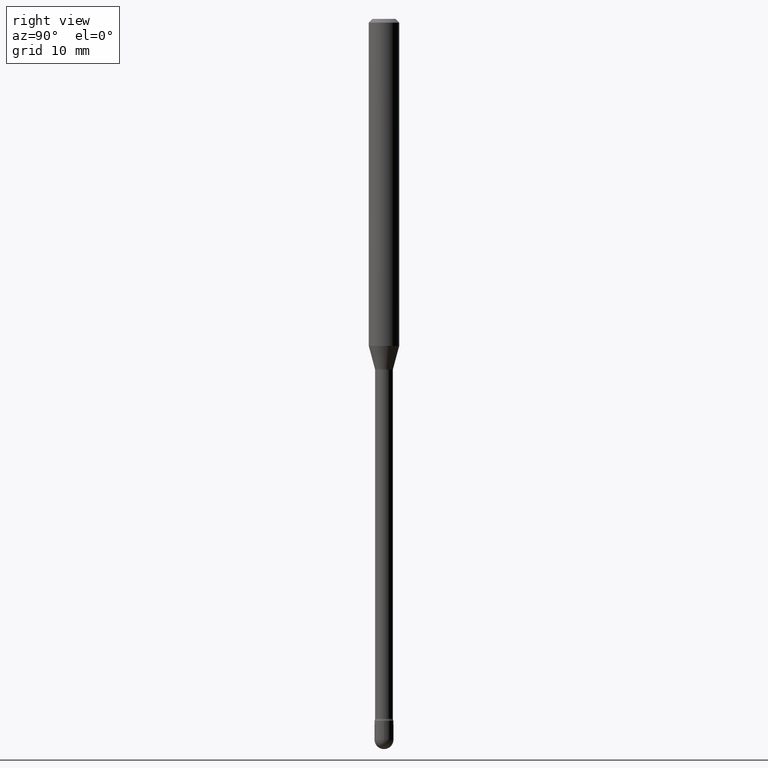
[diagram: clean part render]
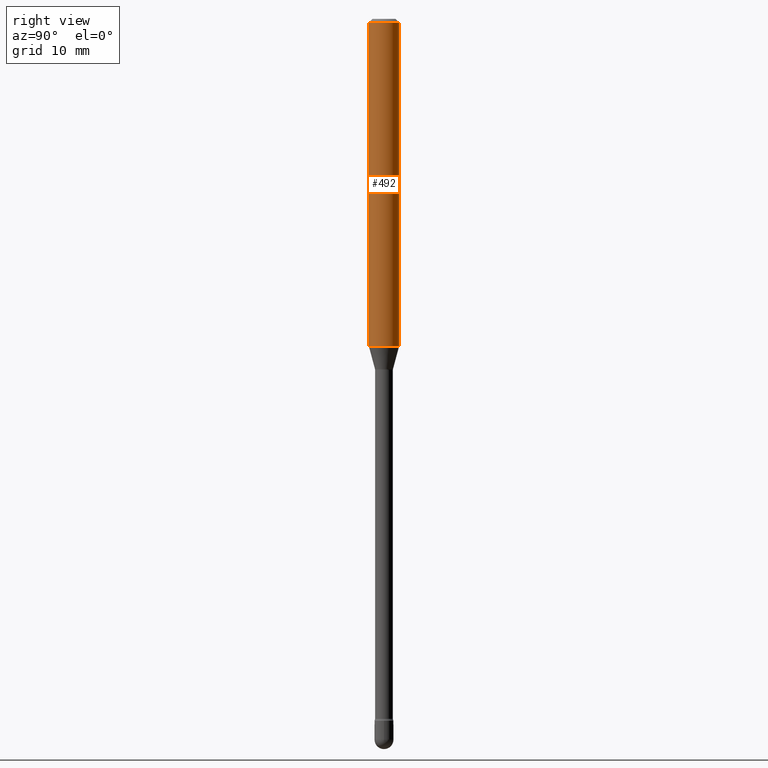
[diagram: same view with one face highlighted and labeled with its STEP entity id]
A machine part, right view. The second image highlights one B-rep face of the part: STEP entity #492.
In plain terms, the highlighted cylindrical surface (edge-blend (fillet) strip) has radius 1.5875 mm, axis along (-0, 0, 1).
Its self-contained STEP definition (entity closure, byte-faithful):
#8 = ORIENTED_EDGE ( 'NONE', *, *, #533, .T. ) ;
#11 = CIRCLE ( 'NONE', #65, 0.06250000000000000000 ) ;
#34 = DIRECTION ( 'NONE',  ( -6.982962677686265922E-15, -1.000000000000000000, 3.491441681932533187E-15 ) ) ;
#36 = AXIS2_PLACEMENT_3D ( 'NONE', #300, #125, #477 ) ;
#54 = VERTEX_POINT ( 'NONE', #378 ) ;
#65 = AXIS2_PLACEMENT_3D ( 'NONE', #525, #399, #445 ) ;
#72 = DIRECTION ( 'NONE',  ( -2.445496498457808529E-29, 3.491441681932533187E-15, 1.000000000000000000 ) ) ;
#77 = EDGE_CURVE ( 'NONE', #465, #54, #11, .T. ) ;
#79 = CARTESIAN_POINT ( 'NONE',  ( -1.169113584055446105E-44, 1.669184350826100908E-30, 4.780733988912460139E-16 ) ) ;
#111 = CYLINDRICAL_SURFACE ( 'NONE', #434, 0.06250000000000000000 ) ;
#115 = EDGE_CURVE ( 'NONE', #157, #446, #292, .T. ) ;
#125 = DIRECTION ( 'NONE',  ( -2.445496498457808529E-29, 3.491441681932533187E-15, 1.000000000000000000 ) ) ;
#149 = CARTESIAN_POINT ( 'NONE',  ( -4.364351673553912750E-16, -0.06250000000000005551, -0.01499999999999986587 ) ) ;
#153 = CARTESIAN_POINT ( 'NONE',  ( 4.440892098500625669E-16, 0.06250000000000000000, 2.598582937704627637E-16 ) ) ;
#157 = VERTEX_POINT ( 'NONE', #529 ) ;
#183 = VECTOR ( 'NONE', #340, 39.37007874015748143 ) ;
#200 = CARTESIAN_POINT ( 'NONE',  ( 4.440892098500952553E-16, 0.06249999999999528155, -1.343526486624345040 ) ) ;
#209 = VECTOR ( 'NONE', #337, 39.37007874015748143 ) ;
#292 = CIRCLE ( 'NONE', #36, 0.06250000000000000000 ) ;
#300 = CARTESIAN_POINT ( 'NONE',  ( 3.285589318625157150E-29, -4.690844376180609543E-15, -1.343526486624344818 ) ) ;
#313 = ORIENTED_EDGE ( 'NONE', *, *, #77, .F. ) ;
#335 = CARTESIAN_POINT ( 'NONE',  ( -4.364351673553916201E-16, -0.06250000000000000000, 6.962885040120294121E-16 ) ) ;
#337 = DIRECTION ( 'NONE',  ( -2.445496498457808529E-29, 3.491441681932533582E-15, 1.000000000000000000 ) ) ;
#340 = DIRECTION ( 'NONE',  ( -2.445496498457808529E-29, 3.491441681932533582E-15, 1.000000000000000000 ) ) ;
#366 = ORIENTED_EDGE ( 'NONE', *, *, #115, .T. ) ;
#378 = CARTESIAN_POINT ( 'NONE',  ( 4.440892098500956497E-16, 0.06249999999999993755, -0.01500000000000030129 ) ) ;
#391 = EDGE_LOOP ( 'NONE', ( #366, #8, #313, #398 ) ) ;
#398 = ORIENTED_EDGE ( 'NONE', *, *, #440, .F. ) ;
#399 = DIRECTION ( 'NONE',  ( -2.445496498457808529E-29, 3.491441681932533187E-15, 1.000000000000000000 ) ) ;
#434 = AXIS2_PLACEMENT_3D ( 'NONE', #79, #72, #34 ) ;
#440 = EDGE_CURVE ( 'NONE', #157, #465, #457, .T. ) ;
#445 = DIRECTION ( 'NONE',  ( -6.982962677686265922E-15, -1.000000000000000000, 3.483106191921935554E-15 ) ) ;
#446 = VERTEX_POINT ( 'NONE', #200 ) ;
#457 = LINE ( 'NONE', #335, #209 ) ;
#463 = FACE_OUTER_BOUND ( 'NONE', #391, .T. ) ;
#465 = VERTEX_POINT ( 'NONE', #149 ) ;
#477 = DIRECTION ( 'NONE',  ( -6.982962677686265922E-15, -1.000000000000000000, 4.370956789862821150E-15 ) ) ;
#492 = ADVANCED_FACE ( 'NONE', ( #463 ), #111, .T. ) ;
#525 = CARTESIAN_POINT ( 'NONE',  ( 3.668244747686732990E-31, -5.237162522898829216E-17, -0.01500000000000008271 ) ) ;
#529 = CARTESIAN_POINT ( 'NONE',  ( -4.364351673553589810E-16, -0.06250000000000471845, -1.343526486624344596 ) ) ;
#533 = EDGE_CURVE ( 'NONE', #446, #54, #558, .T. ) ;
#558 = LINE ( 'NONE', #153, #183 ) ;